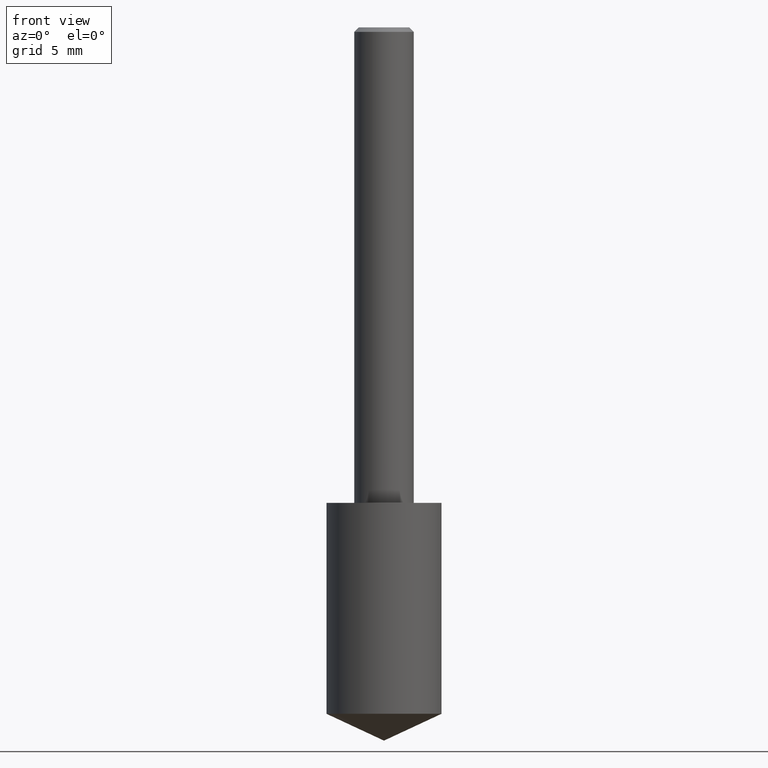
[diagram: clean part render]
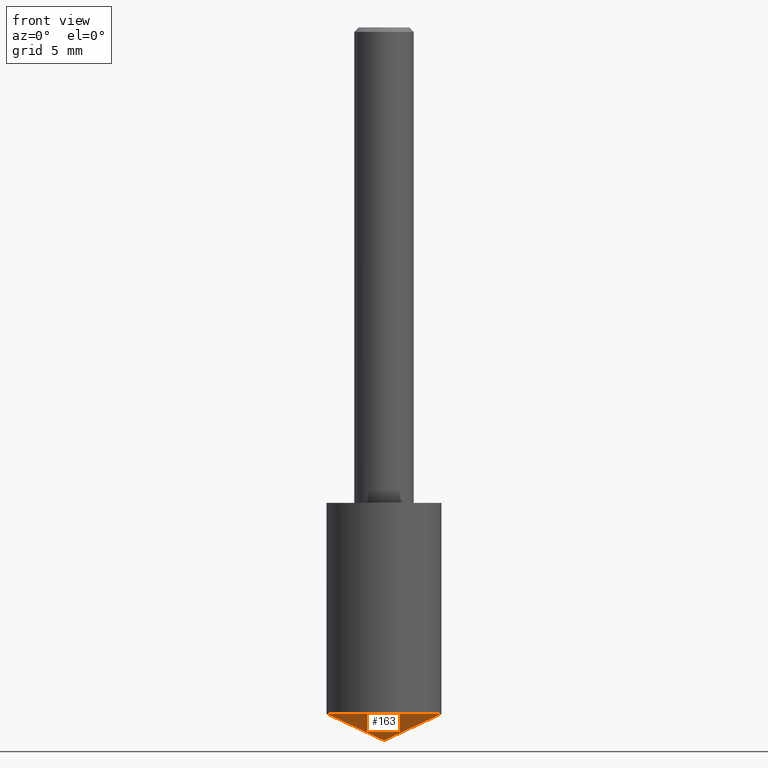
[diagram: same view with one face highlighted and labeled with its STEP entity id]
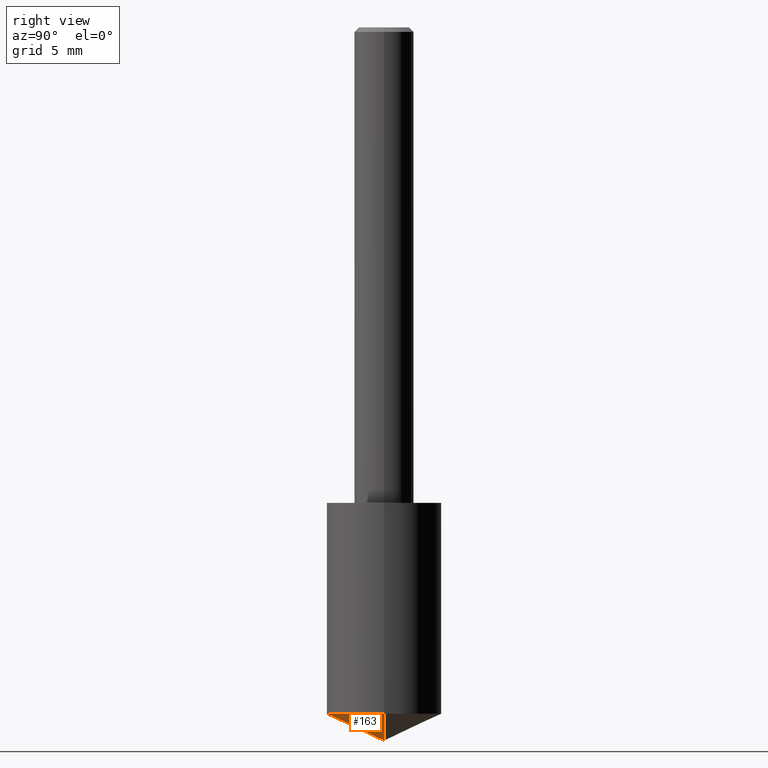
[diagram: same view with one face highlighted and labeled with its STEP entity id]
A machine part, front view. The second image highlights one B-rep face of the part: STEP entity #163.
A second angle (right view) of the same face is appended — the face is thin or edge-on in the first view.
In plain terms, the highlighted conical surface has half-angle 65 deg.
Its self-contained STEP definition (entity closure, byte-faithful):
#2 = ORIENTED_EDGE ( 'NONE', *, *, #288, .F. ) ;
#9 = DIRECTION ( 'NONE',  ( 1.000000000000000000, -6.982962677686266711E-15, 0.000000000000000000 ) ) ;
#11 = LINE ( 'NONE', #108, #229 ) ;
#74 = FACE_OUTER_BOUND ( 'NONE', #187, .T. ) ;
#79 = DIRECTION ( 'NONE',  ( 1.000000000000000000, -6.982962677686264344E-15, 0.000000000000000000 ) ) ;
#97 = EDGE_CURVE ( 'NONE', #208, #103, #123, .T. ) ;
#103 = VERTEX_POINT ( 'NONE', #142 ) ;
#108 = CARTESIAN_POINT ( 'NONE',  ( 3.668203209277704895E-29, -5.237222008264718177E-15, -1.500000000000000222 ) ) ;
#112 = AXIS2_PLACEMENT_3D ( 'NONE', #236, #326, #79 ) ;
#123 = LINE ( 'NONE', #336, #259 ) ;
#142 = CARTESIAN_POINT ( 'NONE',  ( -0.1210500000000000187, -4.180027978523240328E-15, -1.443553457980337740 ) ) ;
#146 = ORIENTED_EDGE ( 'NONE', *, *, #97, .F. ) ;
#155 = DIRECTION ( 'NONE',  ( -2.445468806185136597E-29, 3.491481338843145583E-15, 1.000000000000000000 ) ) ;
#158 = CIRCLE ( 'NONE', #112, 0.1210499999999999909 ) ;
#163 = ADVANCED_FACE ( 'NONE', ( #74 ), #265, .T. ) ;
#187 = EDGE_LOOP ( 'NONE', ( #146, #235, #2 ) ) ;
#208 = VERTEX_POINT ( 'NONE', #323 ) ;
#215 = DIRECTION ( 'NONE',  ( 0.9063077870366502697, -4.853149677051385890E-15, 0.4226182617406986641 ) ) ;
#229 = VECTOR ( 'NONE', #215, 39.37007874015748143 ) ;
#234 = VERTEX_POINT ( 'NONE', #293 ) ;
#235 = ORIENTED_EDGE ( 'NONE', *, *, #267, .T. ) ;
#236 = CARTESIAN_POINT ( 'NONE',  ( 3.530164951551601858E-29, -5.040139960160841539E-15, -1.443553457980337740 ) ) ;
#259 = VECTOR ( 'NONE', #339, 39.37007874015748143 ) ;
#261 = CARTESIAN_POINT ( 'NONE',  ( -9.261009624683002666E-28, 1.322226732217803884E-13, 37.87007874015748143 ) ) ;
#265 = CONICAL_SURFACE ( 'NONE', #315, 84.42940631927417883, 1.134464013796315118 ) ;
#267 = EDGE_CURVE ( 'NONE', #208, #234, #11, .T. ) ;
#288 = EDGE_CURVE ( 'NONE', #103, #234, #158, .T. ) ;
#293 = CARTESIAN_POINT ( 'NONE',  ( 0.1210500000000000187, -5.885427592294764333E-15, -1.443553457980337740 ) ) ;
#315 = AXIS2_PLACEMENT_3D ( 'NONE', #261, #155, #9 ) ;
#323 = CARTESIAN_POINT ( 'NONE',  ( 3.668203209277704895E-29, -5.237222008264718177E-15, -1.500000000000000222 ) ) ;
#326 = DIRECTION ( 'NONE',  ( -2.445468806185136597E-29, 3.491481338843145583E-15, 1.000000000000000000 ) ) ;
#336 = CARTESIAN_POINT ( 'NONE',  ( 3.668203209277704895E-29, -5.237222008264718177E-15, -1.500000000000000222 ) ) ;
#339 = DIRECTION ( 'NONE',  ( -0.9063077870366502697, 7.915267918739016209E-15, 0.4226182617406986641 ) ) ;